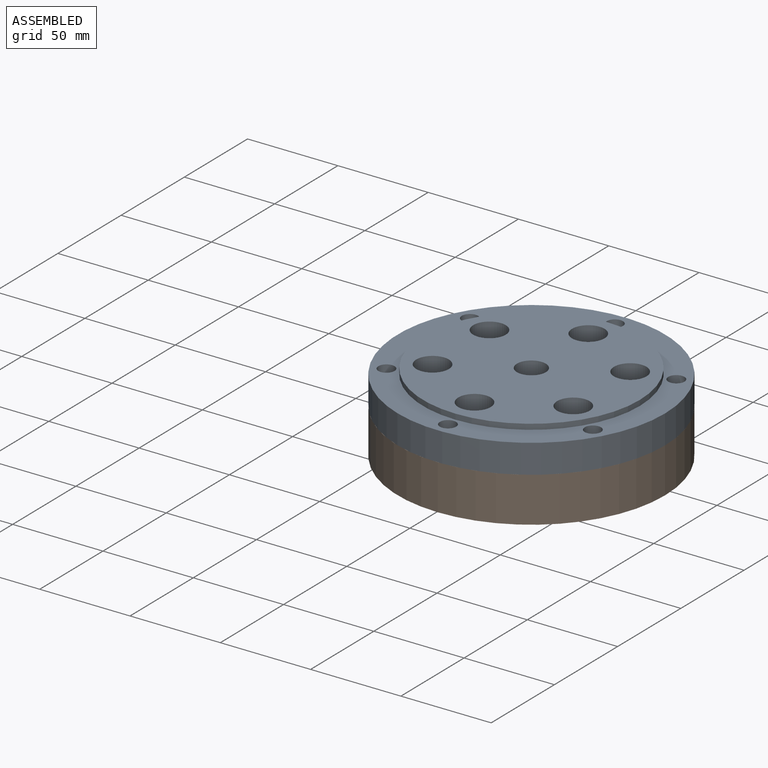
[diagram: assembled view]
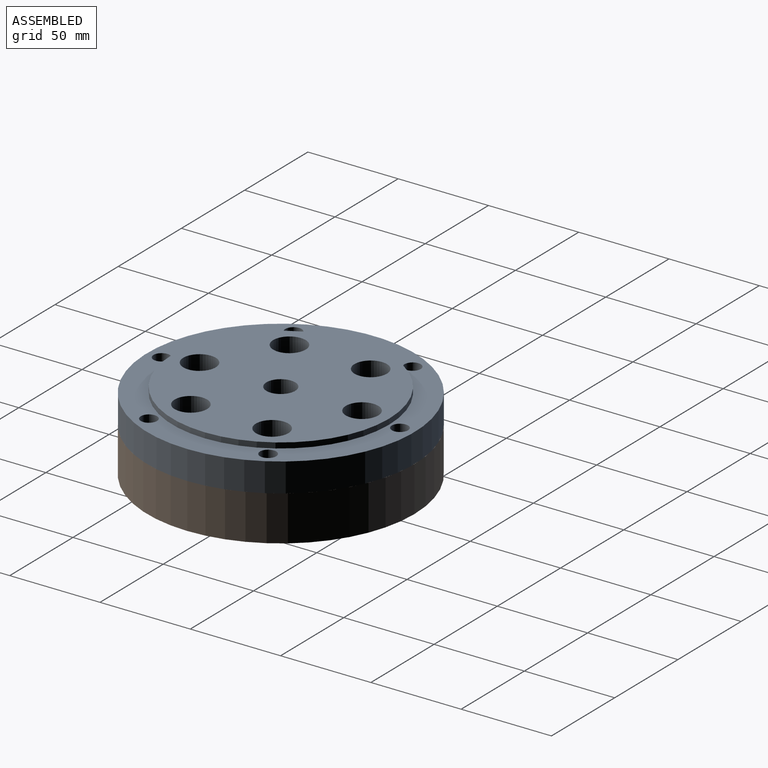
[diagram: assembled view, second angle]
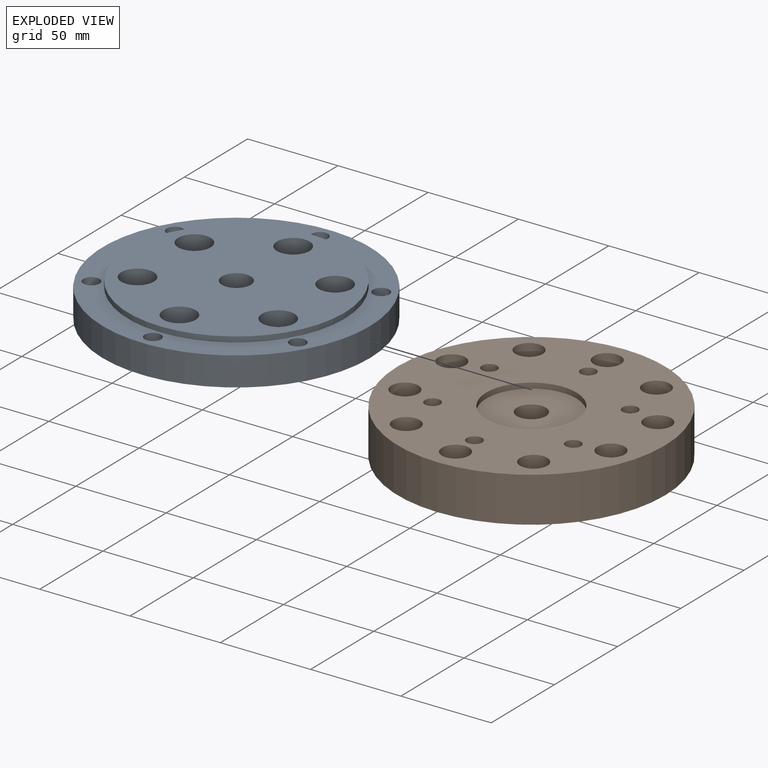
[diagram: exploded view]
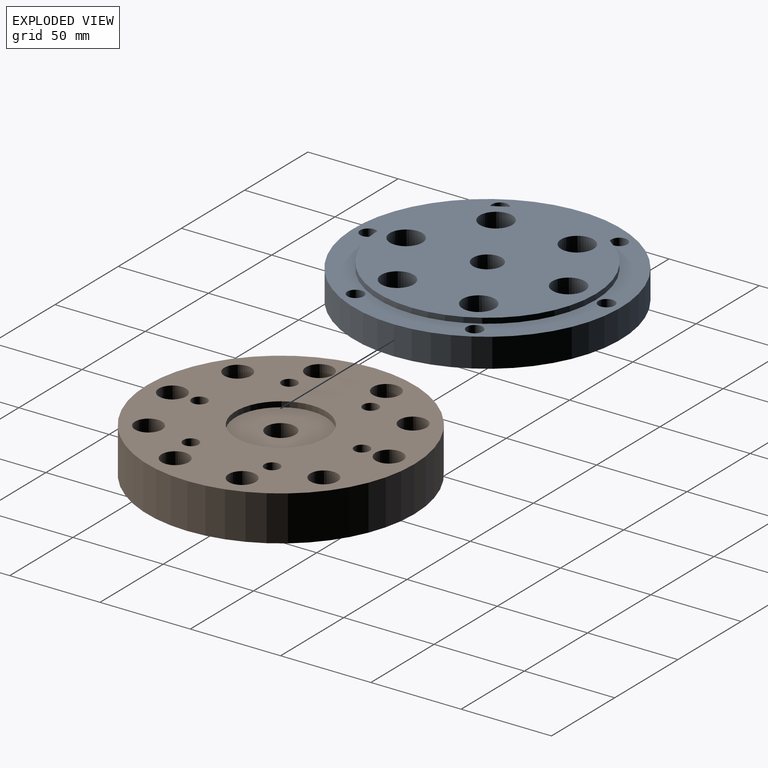
[diagram: exploded view, second angle]
ASSEMBLY  parts=2 mates=2
PART A: 44 faces, bbox 148x148x21 mm
  f0: cylinder r=74mm len=148mm, axis (0,0,-1), area 7439.3mm2, adj f1,f2
  f1: plane 148x148mm, normal (0,0,1), area 5511.9mm2, adj f0,f7,f10,f13,f16,f19,f22,f24
  f2: plane 148x148mm, normal (0,0,-1), area 13660mm2, adj f0,f3,f6,f9,f12,f15,f18,f21
  f3: cylinder r=25mm len=50mm, axis (0,0,1), area 314.2mm2, adj f2,f4
  f4: plane 50x50mm, normal (0,0,-1), area 1762.4mm2, adj f3,f5
  f5: cylinder r=8mm len=21mm, axis (0,0,-1), area 1055.6mm2, adj f4,f25
  f6: cylinder r=7.5mm len=15mm, axis (0,0,-1), area 329.9mm2, adj f2,f8
  f7: cylinder r=4.5mm len=9mm, axis (0,0,-1), area 254.5mm2, adj f1,f8
  f8: plane 15x15mm, normal (0,0,-1), area 113.1mm2, adj f6,f7
  f9: cylinder r=7.5mm len=15mm, axis (0,0,-1), area 329.9mm2, adj f2,f11
  f10: cylinder r=4.5mm len=9mm, axis (0,0,-1), area 254.5mm2, adj f1,f11
  f11: plane 15x15mm, normal (0,0,-1), area 113.1mm2, adj f9,f10
  f12: cylinder r=7.5mm len=15mm, axis (0,0,-1), area 329.9mm2, adj f2,f14
  f13: cylinder r=4.5mm len=9mm, axis (0,0,-1), area 254.5mm2, adj f1,f14
  f14: plane 15x15mm, normal (0,0,-1), area 113.1mm2, adj f12,f13
  f15: cylinder r=7.5mm len=15mm, axis (0,0,-1), area 329.9mm2, adj f2,f17
  f16: cylinder r=4.5mm len=9mm, axis (0,0,-1), area 254.5mm2, adj f1,f17
  f17: plane 15x15mm, normal (0,0,-1), area 113.1mm2, adj f15,f16
  f18: cylinder r=7.5mm len=15mm, axis (0,0,-1), area 329.9mm2, adj f2,f20
  f19: cylinder r=4.5mm len=9mm, axis (0,0,-1), area 254.5mm2, adj f1,f20
  f20: plane 15x15mm, normal (0,0,-1), area 113.1mm2, adj f18,f19
  f21: cylinder r=7.5mm len=15mm, axis (0,0,-1), area 329.9mm2, adj f2,f23
  f22: cylinder r=4.5mm len=9mm, axis (0,0,-1), area 254.5mm2, adj f1,f23
  f23: plane 15x15mm, normal (0,0,-1), area 113.1mm2, adj f21,f22
  f24: cylinder r=60mm len=120mm, axis (0,0,-1), area 1131mm2, adj f1,f25
  f25: plane 120x120mm, normal (0,0,1), area 9581.9mm2, adj f5,f24,f28,f31,f34,f37,f40,f43
  f26: cylinder r=5.25mm len=10.5mm, axis (0,0,1), area 263.9mm2, adj f2,f27
  f27: plane 18x18mm, normal (0,0,1), area 167.9mm2, adj f26,f28
  f28: cylinder r=9mm len=18mm, axis (0,0,1), area 622mm2, adj f25,f27
  f29: cylinder r=5.25mm len=10.5mm, axis (0,0,1), area 263.9mm2, adj f2,f30
  f30: plane 18x18mm, normal (0,0,1), area 167.9mm2, adj f29,f31
  f31: cylinder r=9mm len=18mm, axis (0,0,1), area 622mm2, adj f25,f30
  f32: cylinder r=5.25mm len=10.5mm, axis (0,0,1), area 263.9mm2, adj f2,f33
  f33: plane 18x18mm, normal (0,0,1), area 167.9mm2, adj f32,f34
  f34: cylinder r=9mm len=18mm, axis (0,0,1), area 622mm2, adj f25,f33
  f35: cylinder r=5.25mm len=10.5mm, axis (0,0,1), area 263.9mm2, adj f2,f36
  f36: plane 18x18mm, normal (0,0,1), area 167.9mm2, adj f35,f37
  f37: cylinder r=9mm len=18mm, axis (0,0,1), area 622mm2, adj f25,f36
  f38: cylinder r=5.25mm len=10.5mm, axis (0,0,1), area 263.9mm2, adj f2,f39
  f39: plane 18x18mm, normal (0,0,1), area 167.9mm2, adj f38,f40
  f40: cylinder r=9mm len=18mm, axis (0,0,1), area 622mm2, adj f25,f39
  f41: cylinder r=5.25mm len=10.5mm, axis (0,0,1), area 263.9mm2, adj f2,f42
  f42: plane 18x18mm, normal (0,0,1), area 167.9mm2, adj f41,f43
  f43: cylinder r=9mm len=18mm, axis (0,0,1), area 622mm2, adj f25,f42
PART B: 46 faces, bbox 148x148x30 mm
  f0: cylinder r=74mm len=148mm, axis (0,0,-1), area 11623.9mm2, adj f1,f2
  f1: plane 148x148mm, normal (0,0,1), area 13132.2mm2, adj f0,f3,f12,f15,f18,f21,f24,f27
  f2: plane 148x148mm, normal (0,0,-1), area 7908.2mm2, adj f0,f5,f10,f13,f16,f19,f22,f25
  f3: cylinder r=25mm len=50mm, axis (0,0,1), area 471.2mm2, adj f1,f4
  f4: plane 50x50mm, normal (0,0,1), area 1762.4mm2, adj f3,f9
  f5: cylinder r=52.5mm len=105mm, axis (0,0,1), area 1649.3mm2, adj f2,f6
  f6: plane 105x105mm, normal (0,0,-1), area 961.3mm2, adj f5,f7
  f7: cylinder r=49.5mm len=99mm, axis (0,0,-1), area 1555.1mm2, adj f6,f8
  f8: plane 99x99mm, normal (0,0,-1), area 7156.2mm2, adj f7,f9,f40,f41,f42,f43,f44,f45
  f9: cylinder r=8mm len=22mm, axis (0,0,1), area 1105.8mm2, adj f4,f8
  f10: cylinder r=4.5mm len=16mm, axis (0,0,1), area 452.4mm2, adj f2,f11
  f11: plane 15x15mm, normal (0,0,1), area 113.1mm2, adj f10,f12
  f12: cylinder r=7.5mm len=15mm, axis (0,0,1), area 424.1mm2, adj f1,f11
  f13: cylinder r=4.5mm len=16mm, axis (0,0,1), area 452.4mm2, adj f2,f14
  f14: plane 15x15mm, normal (0,0,1), area 113.1mm2, adj f13,f15
  f15: cylinder r=7.5mm len=15mm, axis (0,0,1), area 424.1mm2, adj f1,f14
  f16: cylinder r=4.5mm len=16mm, axis (0,0,1), area 452.4mm2, adj f2,f17
  f17: plane 15x15mm, normal (0,0,1), area 113.1mm2, adj f16,f18
  f18: cylinder r=7.5mm len=15mm, axis (0,0,1), area 424.1mm2, adj f1,f17
  f19: cylinder r=4.5mm len=16mm, axis (0,0,1), area 452.4mm2, adj f2,f20
  f20: plane 15x15mm, normal (0,0,1), area 113.1mm2, adj f19,f21
  f21: cylinder r=7.5mm len=15mm, axis (0,0,1), area 424.1mm2, adj f1,f20
  f22: cylinder r=4.5mm len=16mm, axis (0,0,1), area 452.4mm2, adj f2,f23
  f23: plane 15x15mm, normal (0,0,1), area 113.1mm2, adj f22,f24
  f24: cylinder r=7.5mm len=15mm, axis (0,0,1), area 424.1mm2, adj f1,f23
  f25: cylinder r=4.5mm len=16mm, axis (0,0,1), area 452.4mm2, adj f2,f26
  f26: plane 15x15mm, normal (0,0,1), area 113.1mm2, adj f25,f27
  f27: cylinder r=7.5mm len=15mm, axis (0,0,1), area 424.1mm2, adj f1,f26
  f28: cylinder r=4.5mm len=16mm, axis (0,0,1), area 452.4mm2, adj f2,f29
  f29: plane 15x15mm, normal (0,0,1), area 113.1mm2, adj f28,f30
  f30: cylinder r=7.5mm len=15mm, axis (0,0,1), area 424.1mm2, adj f1,f29
  f31: cylinder r=4.5mm len=16mm, axis (0,0,1), area 452.4mm2, adj f2,f32
  f32: plane 15x15mm, normal (0,0,1), area 113.1mm2, adj f31,f33
  f33: cylinder r=7.5mm len=15mm, axis (0,0,1), area 424.1mm2, adj f1,f32
  f34: cylinder r=4.5mm len=16mm, axis (0,0,1), area 452.4mm2, adj f2,f35
  f35: plane 15x15mm, normal (0,0,1), area 113.1mm2, adj f34,f36
  f36: cylinder r=7.5mm len=15mm, axis (0,0,1), area 424.1mm2, adj f1,f35
  f37: cylinder r=4.5mm len=16mm, axis (0,0,1), area 452.4mm2, adj f2,f38
  f38: plane 15x15mm, normal (0,0,1), area 113.1mm2, adj f37,f39
  f39: cylinder r=7.5mm len=15mm, axis (0,0,1), area 424.1mm2, adj f1,f38
  f40: cylinder r=4.25mm len=25mm, axis (0,0,1), area 667.6mm2, adj f1,f8
  f41: cylinder r=4.25mm len=25mm, axis (0,0,1), area 667.6mm2, adj f1,f8
  f42: cylinder r=4.25mm len=25mm, axis (0,0,1), area 667.6mm2, adj f1,f8
  f43: cylinder r=4.25mm len=25mm, axis (0,0,1), area 667.6mm2, adj f1,f8
  f44: cylinder r=4.25mm len=25mm, axis (0,0,1), area 667.6mm2, adj f1,f8
  f45: cylinder r=4.25mm len=25mm, axis (0,0,1), area 667.6mm2, adj f1,f8
PLACE A t=(123.94,61.87,-22.03)mm
PLACE B t=(123.94,61.87,-47.03)mm
MATE cylindrical B.f0 <-> A.f0  axis (0,0,1) through (123.94,61.87,-25.03)mm
MATE slider A.f0 <-> B.f0  axis (0,0,-1) through (123.94,61.87,-22.03)mm
